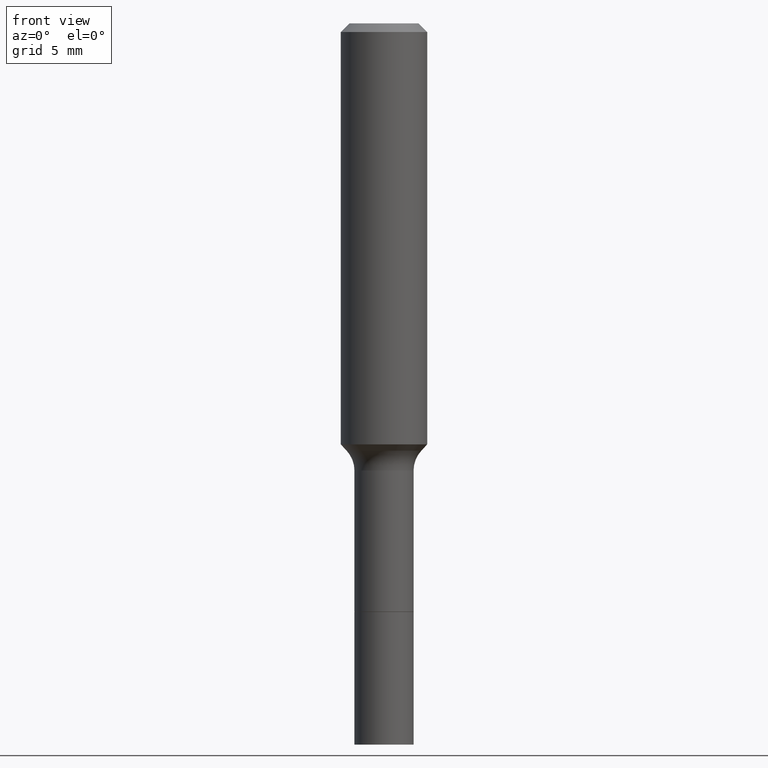
[diagram: clean part render]
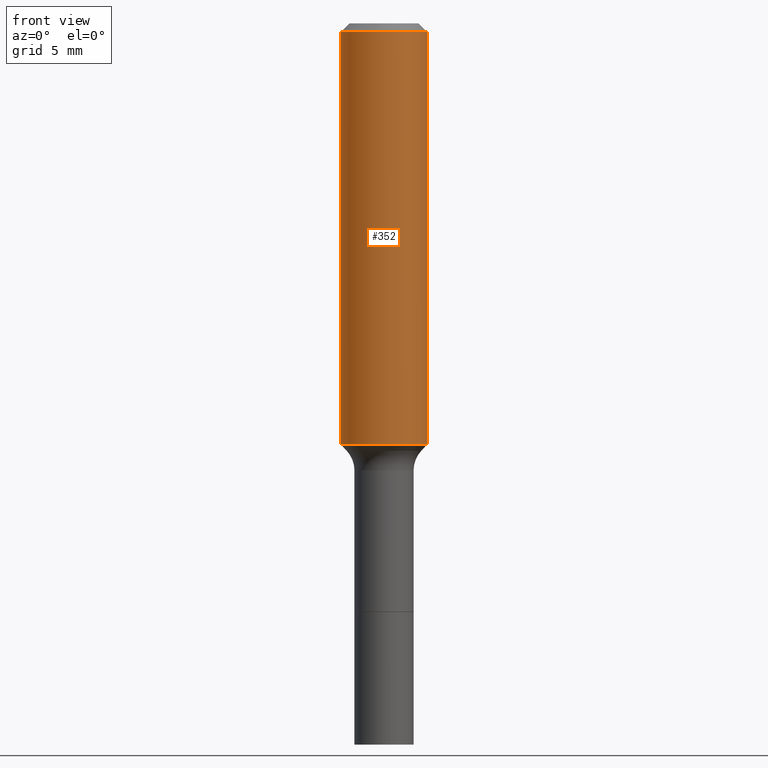
[diagram: same view with one face highlighted and labeled with its STEP entity id]
A machine part, front view. The second image highlights one B-rep face of the part: STEP entity #352.
In plain terms, the highlighted cylindrical surface (partial cylindrical patch) has radius 2.9997 mm, axis along (-0, 0, 1).
Its self-contained STEP definition (entity closure, byte-faithful):
#2 = VECTOR ( 'NONE', #232, 39.37007874015748143 ) ;
#15 = CIRCLE ( 'NONE', #303, 0.1180999999999999966 ) ;
#23 = CARTESIAN_POINT ( 'NONE',  ( 0.1181000000000001354, -4.835982970616103918E-15, -1.148880572195881467 ) ) ;
#28 = DIRECTION ( 'NONE',  ( -2.445468806185136597E-29, 3.491481338843145583E-15, 1.000000000000000000 ) ) ;
#30 = EDGE_CURVE ( 'NONE', #293, #127, #65, .T. ) ;
#37 = DIRECTION ( 'NONE',  ( -2.445468806185136877E-29, 3.491481338843145188E-15, 1.000000000000000000 ) ) ;
#40 = CARTESIAN_POINT ( 'NONE',  ( -0.1180999999999999966, -1.207730962869736176E-15, -0.02362000000000014435 ) ) ;
#50 = EDGE_CURVE ( 'NONE', #461, #127, #15, .T. ) ;
#59 = DIRECTION ( 'NONE',  ( -2.445468806185136597E-29, 3.491481338843145583E-15, 1.000000000000000000 ) ) ;
#65 = LINE ( 'NONE', #384, #2 ) ;
#127 = VERTEX_POINT ( 'NONE', #135 ) ;
#135 = CARTESIAN_POINT ( 'NONE',  ( 0.1180999999999999966, -9.071566814582237199E-16, -0.02362000000000014435 ) ) ;
#143 = DIRECTION ( 'NONE',  ( 1.000000000000000000, -6.982962677686265133E-15, 0.000000000000000000 ) ) ;
#156 = DIRECTION ( 'NONE',  ( 1.000000000000000000, -6.982962677686266711E-15, 0.000000000000000000 ) ) ;
#184 = CARTESIAN_POINT ( 'NONE',  ( 2.809551601337159132E-29, -4.011295078381354866E-15, -1.148880572195881467 ) ) ;
#192 = FACE_OUTER_BOUND ( 'NONE', #291, .T. ) ;
#197 = AXIS2_PLACEMENT_3D ( 'NONE', #230, #59, #223 ) ;
#214 = VECTOR ( 'NONE', #37, 39.37007874015748143 ) ;
#223 = DIRECTION ( 'NONE',  ( 1.000000000000000000, -6.982962677686266711E-15, 4.876176775795936353E-29 ) ) ;
#230 = CARTESIAN_POINT ( 'NONE',  ( 0.000000000000000000, 0.000000000000000000, 0.000000000000000000 ) ) ;
#232 = DIRECTION ( 'NONE',  ( -2.445468806185136877E-29, 3.491481338843145188E-15, 1.000000000000000000 ) ) ;
#285 = CARTESIAN_POINT ( 'NONE',  ( 5.776197320209328408E-31, -8.246878922347560526E-17, -0.02362000000000014435 ) ) ;
#289 = CIRCLE ( 'NONE', #490, 0.1181000000000001354 ) ;
#291 = EDGE_LOOP ( 'NONE', ( #449, #442, #414, #486 ) ) ;
#293 = VERTEX_POINT ( 'NONE', #23 ) ;
#303 = AXIS2_PLACEMENT_3D ( 'NONE', #285, #28, #156 ) ;
#306 = CYLINDRICAL_SURFACE ( 'NONE', #197, 0.1181000000000000660 ) ;
#318 = CARTESIAN_POINT ( 'NONE',  ( -0.1181000000000000660, 8.391509709326787887E-16, -5.809262341591047287E-30 ) ) ;
#343 = DIRECTION ( 'NONE',  ( -2.445468806185136597E-29, 3.491481338843145583E-15, 1.000000000000000000 ) ) ;
#349 = EDGE_CURVE ( 'NONE', #447, #293, #289, .T. ) ;
#352 = ADVANCED_FACE ( 'NONE', ( #192 ), #306, .T. ) ;
#384 = CARTESIAN_POINT ( 'NONE',  ( 0.1181000000000000660, -8.246878922347485584E-16, 5.758764772215003944E-30 ) ) ;
#414 = ORIENTED_EDGE ( 'NONE', *, *, #30, .T. ) ;
#442 = ORIENTED_EDGE ( 'NONE', *, *, #349, .T. ) ;
#447 = VERTEX_POINT ( 'NONE', #476 ) ;
#449 = ORIENTED_EDGE ( 'NONE', *, *, #491, .F. ) ;
#461 = VERTEX_POINT ( 'NONE', #40 ) ;
#476 = CARTESIAN_POINT ( 'NONE',  ( -0.1181000000000001354, -3.172144107448675880E-15, -1.148880572195881467 ) ) ;
#486 = ORIENTED_EDGE ( 'NONE', *, *, #50, .F. ) ;
#490 = AXIS2_PLACEMENT_3D ( 'NONE', #184, #343, #143 ) ;
#491 = EDGE_CURVE ( 'NONE', #447, #461, #516, .T. ) ;
#516 = LINE ( 'NONE', #318, #214 ) ;